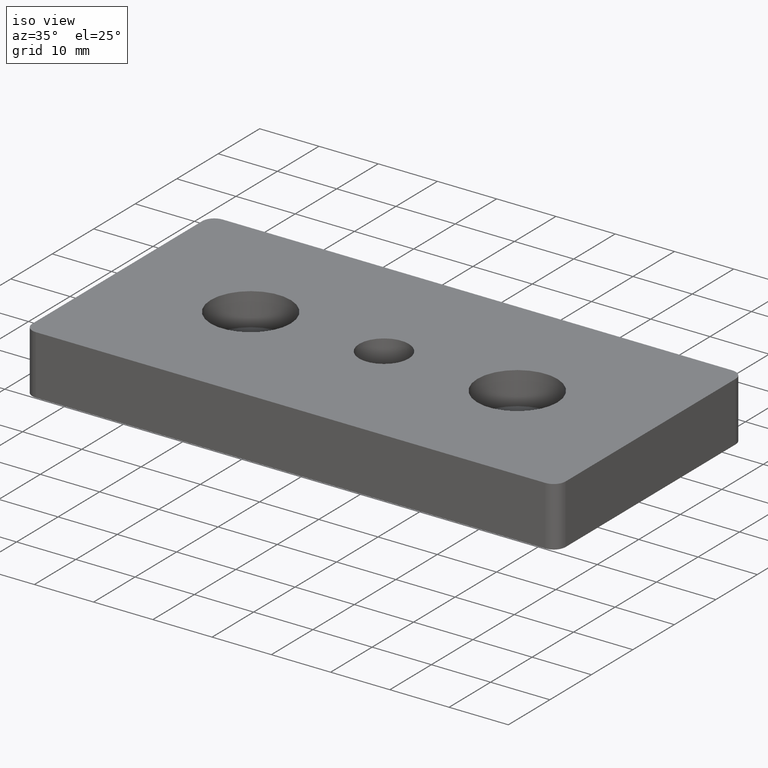
[diagram: clean part render]
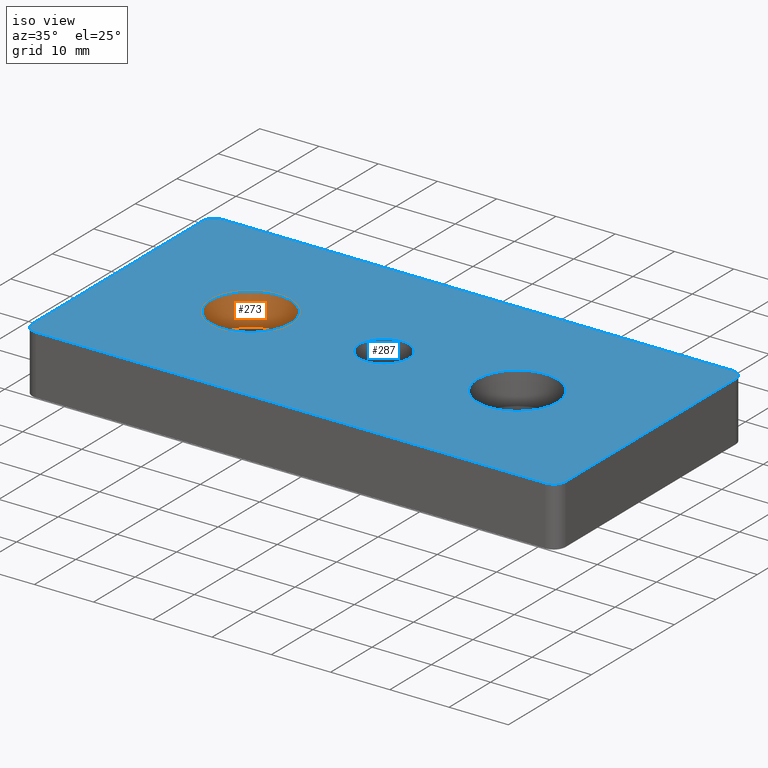
[diagram: same view with the hole feature highlighted: cylindrical wall and planar end face, labeled with their STEP entity ids]
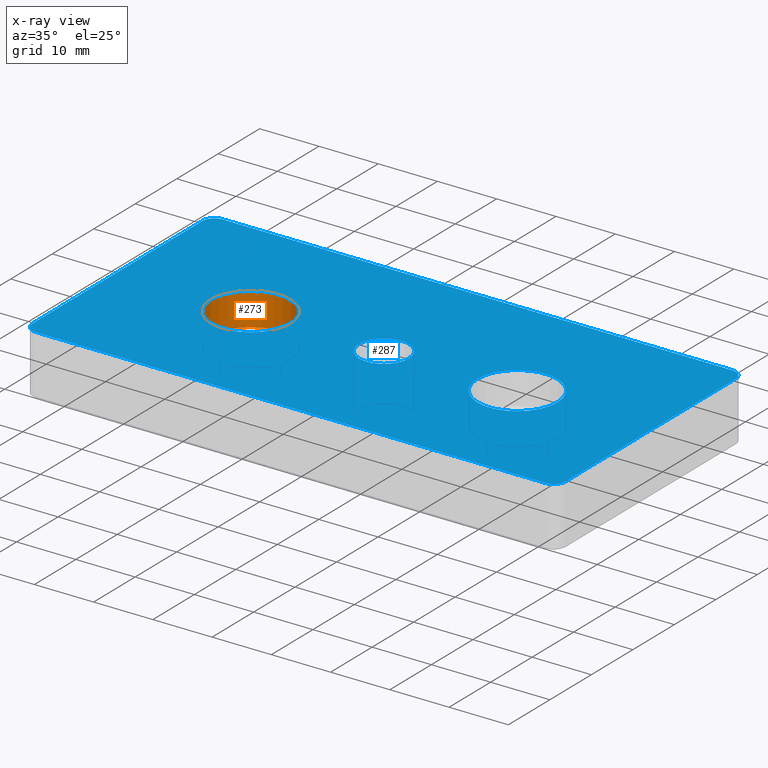
[diagram: x-ray of the same camera — body ghosted, the hole faces saturated]
A machine part, iso view. The highlighted faces form one hole feature of diameter 13.5 mm: the cylindrical wall (entity #273, orange) and its adjacent planar end face (entity #287, blue) — they share a circular edge in the B-rep.
The next image is the same camera in x-ray (body ghosted, the hole faces saturated) — the bore reads through the body.
Wall:
#58=FACE_BOUND('',#91,.T.);
#71=FACE_OUTER_BOUND('',#90,.T.);
#90=EDGE_LOOP('',(#198));
#91=EDGE_LOOP('',(#199));
#118=CIRCLE('',#294,6.75);
#120=CIRCLE('',#297,6.75);
#136=VERTEX_POINT('',#420);
#138=VERTEX_POINT('',#425);
#162=EDGE_CURVE('',#136,#136,#118,.T.);
#164=EDGE_CURVE('',#138,#138,#120,.T.);
#198=ORIENTED_EDGE('',*,*,#164,.F.);
#199=ORIENTED_EDGE('',*,*,#162,.F.);
#263=CYLINDRICAL_SURFACE('',#296,6.75);
#273=ADVANCED_FACE('',(#71,#58),#263,.F.);
#294=AXIS2_PLACEMENT_3D('',#421,#335,#336);
#296=AXIS2_PLACEMENT_3D('',#424,#339,#340);
#297=AXIS2_PLACEMENT_3D('',#426,#341,#342);
#335=DIRECTION('center_axis',(0.,0.,1.));
#336=DIRECTION('ref_axis',(1.,0.,0.));
#339=DIRECTION('center_axis',(0.,0.,1.));
#340=DIRECTION('ref_axis',(1.,0.,0.));
#341=DIRECTION('center_axis',(0.,0.,-1.));
#342=DIRECTION('ref_axis',(1.,0.,0.));
#420=CARTESIAN_POINT('',(-15.75,0.,4.5));
#421=CARTESIAN_POINT('Origin',(-22.5,0.,4.5));
#424=CARTESIAN_POINT('Origin',(-22.5,0.,7.25));
#425=CARTESIAN_POINT('',(-15.75,0.,10.));
#426=CARTESIAN_POINT('Origin',(-22.5,0.,10.));
End face:
#22=LINE('',#466,#38);
#28=LINE('',#481,#44);
#30=LINE('',#487,#46);
#31=LINE('',#489,#47);
#38=VECTOR('',#383,41.);
#44=VECTOR('',#399,41.);
#46=VECTOR('',#407,86.);
#47=VECTOR('',#410,86.);
#55=PLANE('',#324);
#66=FACE_BOUND('',#113,.T.);
#67=FACE_BOUND('',#114,.T.);
#68=FACE_BOUND('',#115,.T.);
#85=FACE_OUTER_BOUND('',#112,.T.);
#112=EDGE_LOOP('',(#251,#252,#253,#254,#255,#256,#257,#258));
#113=EDGE_LOOP('',(#259));
#114=EDGE_LOOP('',(#260));
#115=EDGE_LOOP('',(#261));
#117=CIRCLE('',#292,4.188);
#120=CIRCLE('',#297,6.75);
#124=CIRCLE('',#304,6.75);
#126=CIRCLE('',#308,2.);
#131=CIRCLE('',#316,2.);
#132=CIRCLE('',#318,2.);
#133=CIRCLE('',#321,2.);
#135=VERTEX_POINT('',#417);
#138=VERTEX_POINT('',#425);
#142=VERTEX_POINT('',#436);
#144=VERTEX_POINT('',#442);
#145=VERTEX_POINT('',#443);
#154=VERTEX_POINT('',#465);
#155=VERTEX_POINT('',#469);
#156=VERTEX_POINT('',#473);
#157=VERTEX_POINT('',#474);
#158=VERTEX_POINT('',#479);
#159=VERTEX_POINT('',#483);
#161=EDGE_CURVE('',#135,#135,#117,.T.);
#164=EDGE_CURVE('',#138,#138,#120,.T.);
#168=EDGE_CURVE('',#142,#142,#124,.T.);
#170=EDGE_CURVE('',#144,#145,#126,.T.);
#181=EDGE_CURVE('',#154,#145,#22,.T.);
#183=EDGE_CURVE('',#154,#155,#131,.T.);
#185=EDGE_CURVE('',#156,#157,#132,.T.);
#189=EDGE_CURVE('',#156,#158,#28,.T.);
#190=EDGE_CURVE('',#159,#158,#133,.T.);
#192=EDGE_CURVE('',#159,#155,#30,.T.);
#193=EDGE_CURVE('',#144,#157,#31,.T.);
#251=ORIENTED_EDGE('',*,*,#170,.F.);
#252=ORIENTED_EDGE('',*,*,#193,.T.);
#253=ORIENTED_EDGE('',*,*,#185,.F.);
#254=ORIENTED_EDGE('',*,*,#189,.T.);
#255=ORIENTED_EDGE('',*,*,#190,.F.);
#256=ORIENTED_EDGE('',*,*,#192,.T.);
#257=ORIENTED_EDGE('',*,*,#183,.F.);
#258=ORIENTED_EDGE('',*,*,#181,.T.);
#259=ORIENTED_EDGE('',*,*,#161,.T.);
#260=ORIENTED_EDGE('',*,*,#164,.T.);
#261=ORIENTED_EDGE('',*,*,#168,.T.);
#287=ADVANCED_FACE('',(#85,#66,#67,#68),#55,.T.);
#292=AXIS2_PLACEMENT_3D('',#418,#331,#332);
#297=AXIS2_PLACEMENT_3D('',#426,#341,#342);
#304=AXIS2_PLACEMENT_3D('',#437,#355,#356);
#308=AXIS2_PLACEMENT_3D('',#444,#363,#364);
#316=AXIS2_PLACEMENT_3D('',#470,#387,#388);
#318=AXIS2_PLACEMENT_3D('',#475,#392,#393);
#321=AXIS2_PLACEMENT_3D('',#484,#402,#403);
#324=AXIS2_PLACEMENT_3D('',#490,#411,#412);
#331=DIRECTION('center_axis',(0.,0.,-1.));
#332=DIRECTION('ref_axis',(1.,0.,0.));
#341=DIRECTION('center_axis',(0.,0.,-1.));
#342=DIRECTION('ref_axis',(1.,0.,0.));
#355=DIRECTION('center_axis',(0.,0.,-1.));
#356=DIRECTION('ref_axis',(1.,0.,0.));
#363=DIRECTION('center_axis',(0.,0.,-1.));
#364=DIRECTION('ref_axis',(-0.707106781186546,-0.707106781186549,0.));
#383=DIRECTION('',(0.,-1.,0.));
#387=DIRECTION('center_axis',(0.,0.,-1.));
#388=DIRECTION('ref_axis',(-0.707106781186546,0.707106781186549,0.));
#392=DIRECTION('center_axis',(0.,0.,-1.));
#393=DIRECTION('ref_axis',(0.707106781186546,-0.707106781186549,0.));
#399=DIRECTION('',(0.,1.,0.));
#402=DIRECTION('center_axis',(0.,0.,-1.));
#403=DIRECTION('ref_axis',(0.707106781186546,0.707106781186549,0.));
#407=DIRECTION('',(-1.,0.,0.));
#410=DIRECTION('',(1.,0.,0.));
#411=DIRECTION('center_axis',(0.,0.,1.));
#412=DIRECTION('ref_axis',(1.,0.,0.));
#417=CARTESIAN_POINT('',(4.188,0.,10.));
#418=CARTESIAN_POINT('Origin',(0.,0.,10.));
#425=CARTESIAN_POINT('',(-15.75,0.,10.));
#426=CARTESIAN_POINT('Origin',(-22.5,0.,10.));
#436=CARTESIAN_POINT('',(29.25,0.,10.));
#437=CARTESIAN_POINT('Origin',(22.5,0.,10.));
#442=CARTESIAN_POINT('',(-43.,-22.5,10.));
#443=CARTESIAN_POINT('',(-45.,-20.5,10.));
#444=CARTESIAN_POINT('Origin',(-43.,-20.5,10.));
#465=CARTESIAN_POINT('',(-45.,20.5,10.));
#466=CARTESIAN_POINT('',(-45.,-22.5,10.));
#469=CARTESIAN_POINT('',(-43.,22.5,10.));
#470=CARTESIAN_POINT('Origin',(-43.,20.5,10.));
#473=CARTESIAN_POINT('',(45.,-20.5,10.));
#474=CARTESIAN_POINT('',(43.,-22.5,10.));
#475=CARTESIAN_POINT('Origin',(43.,-20.5,10.));
#479=CARTESIAN_POINT('',(45.,20.5,10.));
#481=CARTESIAN_POINT('',(45.,22.5,10.));
#483=CARTESIAN_POINT('',(43.,22.5,10.));
#484=CARTESIAN_POINT('Origin',(43.,20.5,10.));
#487=CARTESIAN_POINT('',(-45.,22.5,10.));
#489=CARTESIAN_POINT('',(45.,-22.5,10.));
#490=CARTESIAN_POINT('Origin',(0.,0.,10.));